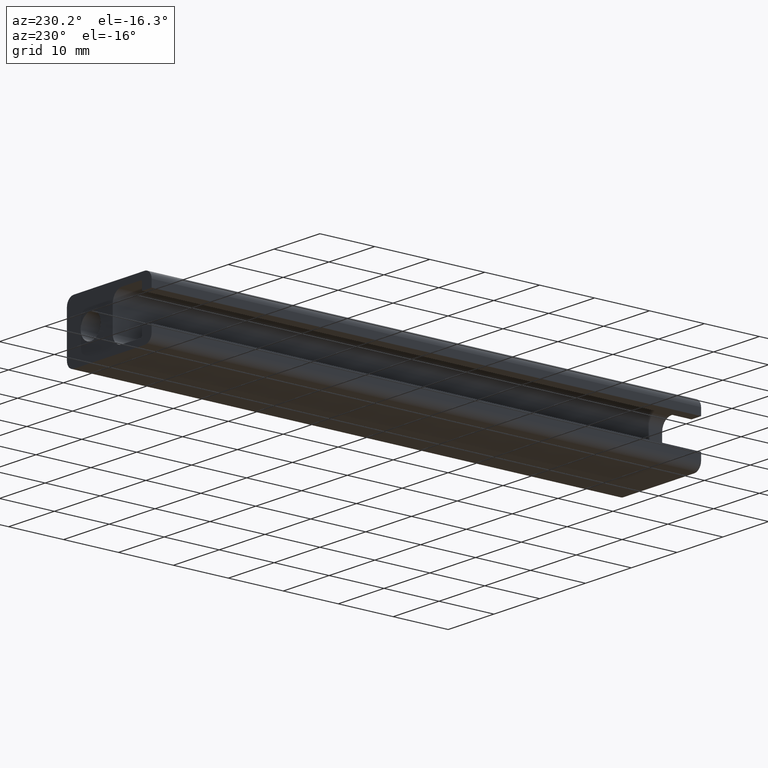
[diagram: clean part render]
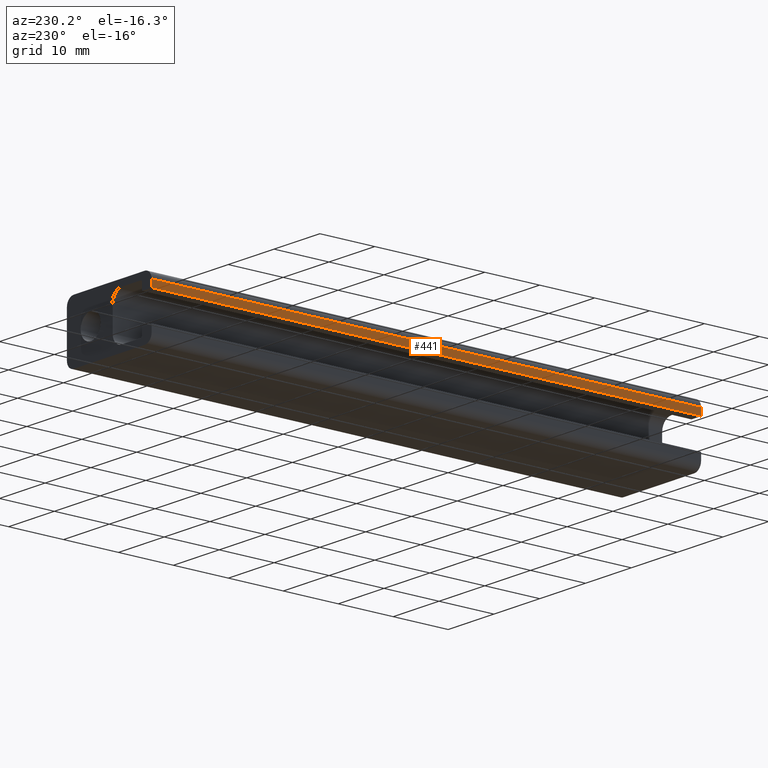
[diagram: same view with one face highlighted and labeled with its STEP entity id]
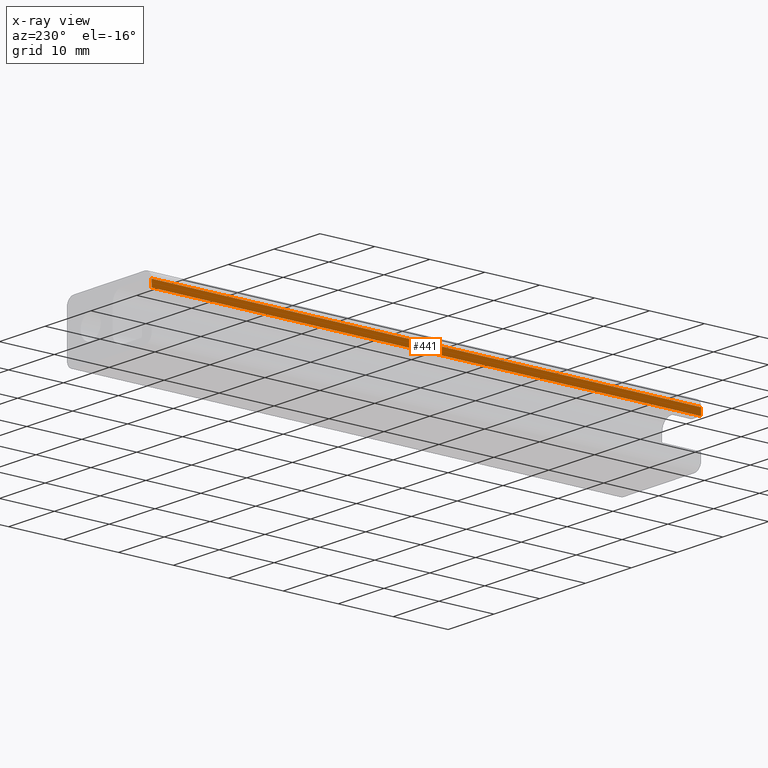
[diagram: x-ray of the same camera — body ghosted, the highlighted face saturated]
A machine part, auxiliary view. The second image highlights one B-rep face of the part: STEP entity #441.
The next image is the same camera in x-ray: the body ghosted, the highlighted face saturated — about 0% of this face is hidden behind the body in this view.
In plain terms, the highlighted planar face has unit normal (-1, 0, 0).
Its self-contained STEP definition (entity closure, byte-faithful):
#49=LINE('',#722,#93);
#50=LINE('',#725,#94);
#51=LINE('',#727,#95);
#52=LINE('',#728,#96);
#93=VECTOR('',#592,100.);
#94=VECTOR('',#595,1.29999999999882);
#95=VECTOR('',#596,1.29999999999882);
#96=VECTOR('',#597,100.);
#112=PLANE('',#482);
#137=FACE_OUTER_BOUND('',#161,.T.);
#161=EDGE_LOOP('',(#357,#358,#359,#360));
#221=VERTEX_POINT('',#718);
#222=VERTEX_POINT('',#720);
#223=VERTEX_POINT('',#724);
#224=VERTEX_POINT('',#726);
#279=EDGE_CURVE('',#221,#222,#49,.T.);
#280=EDGE_CURVE('',#221,#223,#50,.T.);
#281=EDGE_CURVE('',#224,#222,#51,.T.);
#282=EDGE_CURVE('',#223,#224,#52,.T.);
#357=ORIENTED_EDGE('',*,*,#280,.F.);
#358=ORIENTED_EDGE('',*,*,#279,.T.);
#359=ORIENTED_EDGE('',*,*,#281,.F.);
#360=ORIENTED_EDGE('',*,*,#282,.F.);
#441=ADVANCED_FACE('',(#137),#112,.T.);
#482=AXIS2_PLACEMENT_3D('',#723,#593,#594);
#592=DIRECTION('',(0.,1.,0.));
#593=DIRECTION('center_axis',(-1.,0.,0.));
#594=DIRECTION('ref_axis',(0.,0.,1.));
#595=DIRECTION('',(0.,0.,-1.));
#596=DIRECTION('',(0.,0.,1.));
#597=DIRECTION('',(0.,1.,0.));
#718=CARTESIAN_POINT('',(-9.25,0.,3.89999999999874));
#720=CARTESIAN_POINT('',(-9.25,100.,3.89999999999874));
#722=CARTESIAN_POINT('',(-9.25,0.,3.89999999999874));
#723=CARTESIAN_POINT('Origin',(-9.25,0.,2.59999999999991));
#724=CARTESIAN_POINT('',(-9.25,0.,2.59999999999991));
#725=CARTESIAN_POINT('',(-9.25,0.,3.89999999999874));
#726=CARTESIAN_POINT('',(-9.25,100.,2.59999999999991));
#727=CARTESIAN_POINT('',(-9.25,100.,3.89999999999874));
#728=CARTESIAN_POINT('',(-9.25,0.,2.59999999999991));